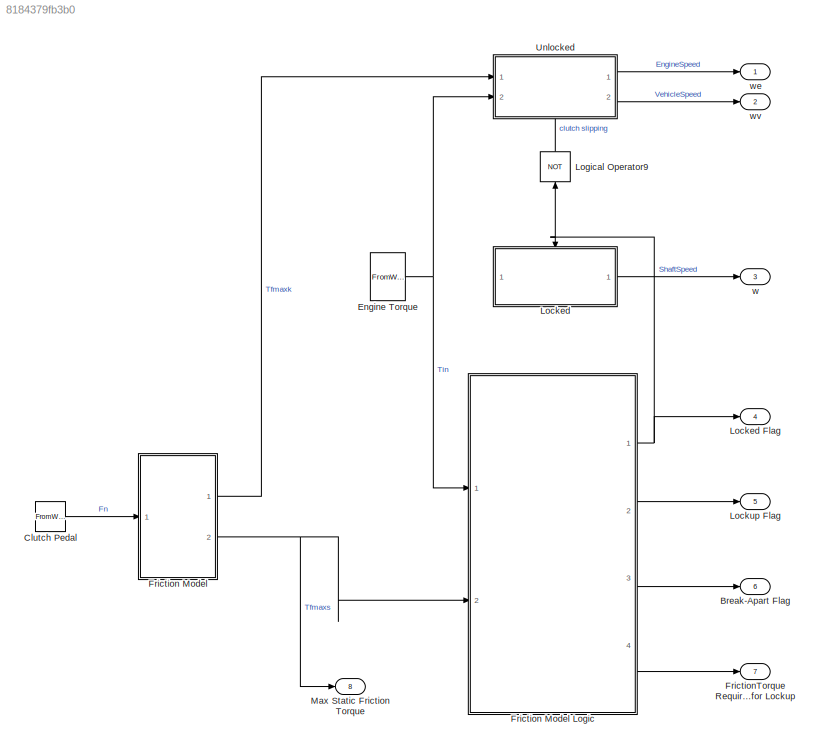
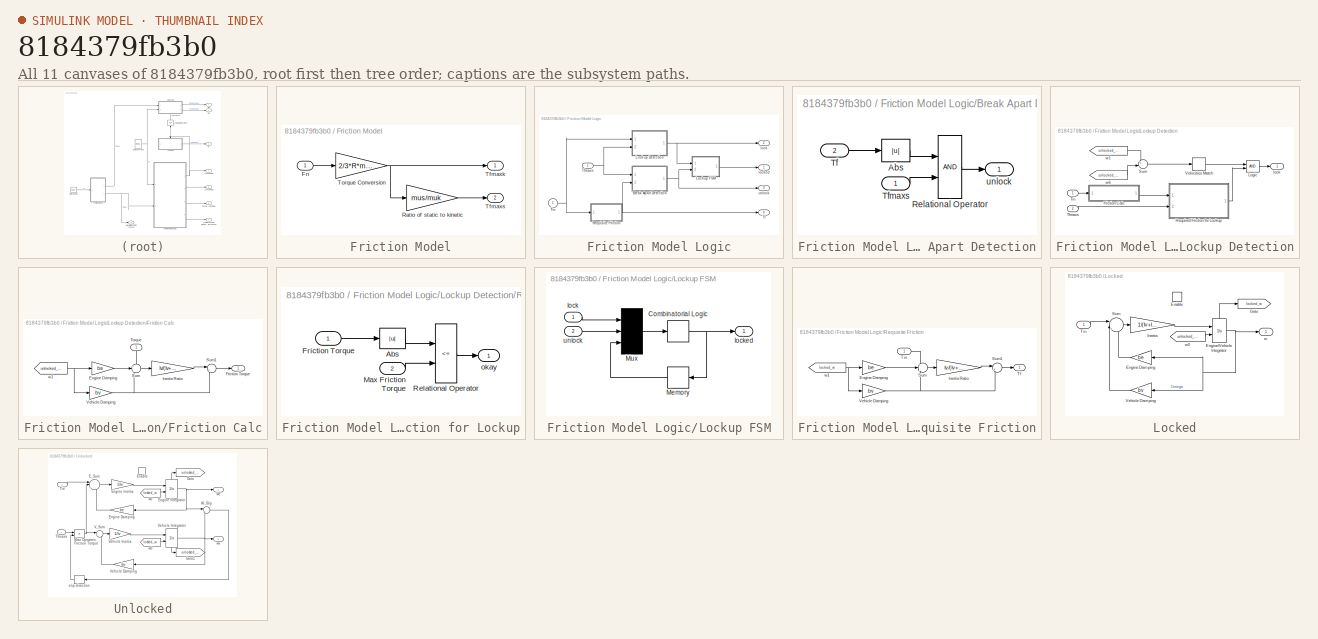
[diagram: thumbnail index - all 11 canvases of the model, root first then tree order]
MODEL slx_8184379fb3b0
KIND model
CONFIG AbsTol = auto
CONFIG EnableMultiTasking = off
CONFIG FixedStep = auto
CONFIG MaxStep = auto
CONFIG MinStep = auto
CONFIG RelTol = 1e-3
CONFIG SampleTimeConstraint = Unconstrained
CONFIG SolverName = VariableStepAuto
CONFIG StartTime = 0.0
CONFIG StopTime = 10.0
WORKSPACE source: mxarray member
WORKSPACE Fn = [0 1 2 3 4 5 6 7 8 9 10 0 ... (22 elements, 11x2)]
WORKSPACE Ie = 1
WORKSPACE Iv = 5
WORKSPACE R = 1
WORKSPACE Tin = [1 2 3 4 5 6 7 8 9 10 2 2 ... (20 elements, 10x2)]
WORKSPACE be = 2
WORKSPACE bv = 1
WORKSPACE f1 = [1 6 11 16 21 26 31 36 41 46 51]
WORKSPACE muk = 1
WORKSPACE mus = 1.5
BLOCK [Outport] Break-Apart Flag
  InitialOutput = 0
  Port = 6
  VectorParamsAs1DForOutWhenUnconnected = off
BLOCK [FromWorkspace] Clutch Pedal
  VariableName = Fn
  ZeroCross = off
BLOCK [FromWorkspace] Engine Torque
  VariableName = Tin
  ZeroCross = off
BLOCK [SubSystem] Friction Model
  Ports = [1, 2]
  RequestExecContextInheritance = off
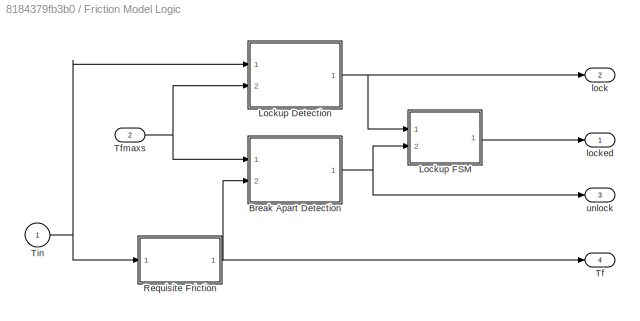
BLOCK [SubSystem] Friction Model Logic
  Ports = [2, 4]
  RequestExecContextInheritance = off
BLOCK [SubSystem] Friction Model Logic/Break Apart Detection
  Ports = [2, 1]
  RequestExecContextInheritance = off
BLOCK [Abs] Friction Model Logic/Break Apart Detection/Abs
BLOCK [RelationalOperator] Friction Model Logic/Break Apart Detection/Relational Operator
  OutDataTypeStr = boolean
  Ports = [2, 1]
BLOCK [Inport] Friction Model Logic/Break Apart Detection/Tf
  Port = 2
BLOCK [Inport] Friction Model Logic/Break Apart Detection/Tfmaxs
BLOCK [Outport] Friction Model Logic/Break Apart Detection/unlock
  InitialOutput = 0
  VectorParamsAs1DForOutWhenUnconnected = off
BLOCK [SubSystem] Friction Model Logic/Lockup Detection
  Ports = [2, 1]
  RequestExecContextInheritance = off
BLOCK [SubSystem] Friction Model Logic/Lockup Detection/Friction Calc
  Ports = [1, 1]
  RequestExecContextInheritance = off
BLOCK [Gain] Friction Model Logic/Lockup Detection/Friction Calc/Engine Damping
  Gain = be
  NameLocation = top
  OutDataTypeStr = Inherit: Same as input
  ParamDataTypeStr = Inherit: Same as input
  SaturateOnIntegerOverflow = on
BLOCK [Outport] Friction Model Logic/Lockup Detection/Friction Calc/Friction Torque
  InitialOutput = 0
  VectorParamsAs1DForOutWhenUnconnected = off
BLOCK [Gain] Friction Model Logic/Lockup Detection/Friction Calc/Inertia Ratio
  Gain = Iv/(Iv+Ie)
  OutDataTypeStr = Inherit: Same as input
  ParamDataTypeStr = Inherit: Same as input
  SaturateOnIntegerOverflow = on
BLOCK [Sum] Friction Model Logic/Lockup Detection/Friction Calc/Sum
  InputSameDT = on
  Inputs = +--
  OutDataTypeStr = Inherit: Same as first input
  Ports = [3, 1]
  SaturateOnIntegerOverflow = on
BLOCK [Sum] Friction Model Logic/Lockup Detection/Friction Calc/Sum1
  InputSameDT = on
  Inputs = |++
  OutDataTypeStr = Inherit: Same as first input
  Ports = [2, 1]
  SaturateOnIntegerOverflow = on
BLOCK [Inport] Friction Model Logic/Lockup Detection/Friction Calc/Torque
  NameLocation = left
BLOCK [Gain] Friction Model Logic/Lockup Detection/Friction Calc/Vehicle Damping
  Gain = bv
  OutDataTypeStr = Inherit: Same as input
  ParamDataTypeStr = Inherit: Same as input
  SaturateOnIntegerOverflow = on
BLOCK [From] Friction Model Logic/Lockup Detection/Friction Calc/w1
  GotoTag = unlocked_we
  TagVisibility = global
BLOCK [Logic] Friction Model Logic/Lockup Detection/Logic
  AttributesFormatString = (%<Operator>)
  IconShape = distinctive
  OutDataTypeStr = boolean
  Ports = [2, 1]
BLOCK [SubSystem] Friction Model Logic/Lockup Detection/Required Friction for Lockup
  Ports = [2, 1]
  RequestExecContextInheritance = off
BLOCK [Abs] Friction Model Logic/Lockup Detection/Required Friction for Lockup/Abs
BLOCK [Inport] Friction Model Logic/Lockup Detection/Required Friction for Lockup/Friction Torque
BLOCK [Inport] Friction Model Logic/Lockup Detection/Required Friction for Lockup/Max Friction Torque
  Port = 2
BLOCK [RelationalOperator] Friction Model Logic/Lockup Detection/Required Friction for Lockup/Relational Operator
  Operator = <=
  OutDataTypeStr = boolean
  Ports = [2, 1]
BLOCK [Outport] Friction Model Logic/Lockup Detection/Required Friction for Lockup/okay
  InitialOutput = 0
  VectorParamsAs1DForOutWhenUnconnected = off
BLOCK [Sum] Friction Model Logic/Lockup Detection/Sum
  InputSameDT = on
  Inputs = +-
  OutDataTypeStr = Inherit: Same as first input
  Ports = [2, 1]
  SaturateOnIntegerOverflow = on
BLOCK [Inport] Friction Model Logic/Lockup Detection/Tfmaxs
  Port = 2
BLOCK [Inport] Friction Model Logic/Lockup Detection/Tin
BLOCK [HitCross] Friction Model Logic/Lockup Detection/Velocities Match
  Ports = [1, 1]
BLOCK [Outport] Friction Model Logic/Lockup Detection/lock
  InitialOutput = 0
  VectorParamsAs1DForOutWhenUnconnected = off
BLOCK [From] Friction Model Logic/Lockup Detection/w1
  GotoTag = unlocked_we
  TagVisibility = global
BLOCK [From] Friction Model Logic/Lockup Detection/w6
  GotoTag = unlocked_wv
  TagVisibility = global
BLOCK [SubSystem] Friction Model Logic/Lockup FSM
  Ports = [2, 1]
  RequestExecContextInheritance = off
BLOCK [CombinatorialLogic] Friction Model Logic/Lockup FSM/Combinatorial Logic
  TruthTable = [0;1;0;0;1;1;1;0]
BLOCK [Memory] Friction Model Logic/Lockup FSM/Memory
BLOCK [Mux] Friction Model Logic/Lockup FSM/Mux
  Inputs = 3
  Ports = [3, 1]
BLOCK [Inport] Friction Model Logic/Lockup FSM/lock
  NameLocation = top
BLOCK [Outport] Friction Model Logic/Lockup FSM/locked
  InitialOutput = 0
  VectorParamsAs1DForOutWhenUnconnected = off
BLOCK [Inport] Friction Model Logic/Lockup FSM/unlock
  Port = 2
BLOCK [SubSystem] Friction Model Logic/Requisite Friction
  Ports = [1, 1]
  RequestExecContextInheritance = off
BLOCK [Gain] Friction Model Logic/Requisite Friction/Engine Damping
  Gain = be
  NameLocation = top
  OutDataTypeStr = Inherit: Same as input
  ParamDataTypeStr = Inherit: Same as input
  SaturateOnIntegerOverflow = on
BLOCK [Gain] Friction Model Logic/Requisite Friction/Inertia Ratio
  Gain = Iv/(Iv+Ie)
  OutDataTypeStr = Inherit: Same as input
  ParamDataTypeStr = Inherit: Same as input
  SaturateOnIntegerOverflow = on
BLOCK [Sum] Friction Model Logic/Requisite Friction/Sum
  InputSameDT = on
  Inputs = +--
  OutDataTypeStr = Inherit: Same as first input
  Ports = [3, 1]
  SaturateOnIntegerOverflow = on
BLOCK [Sum] Friction Model Logic/Requisite Friction/Sum1
  InputSameDT = on
  Inputs = |++
  OutDataTypeStr = Inherit: Same as first input
  Ports = [2, 1]
  SaturateOnIntegerOverflow = on
BLOCK [Outport] Friction Model Logic/Requisite Friction/Tf
  InitialOutput = 0
  VectorParamsAs1DForOutWhenUnconnected = off
BLOCK [Inport] Friction Model Logic/Requisite Friction/Tin
BLOCK [Gain] Friction Model Logic/Requisite Friction/Vehicle Damping
  Gain = bv
  OutDataTypeStr = Inherit: Same as input
  ParamDataTypeStr = Inherit: Same as input
  SaturateOnIntegerOverflow = on
BLOCK [From] Friction Model Logic/Requisite Friction/w1
  GotoTag = locked_w
  NameLocation = top
  TagVisibility = global
BLOCK [Outport] Friction Model Logic/Tf
  InitialOutput = 0
  Port = 4
  VectorParamsAs1DForOutWhenUnconnected = off
BLOCK [Inport] Friction Model Logic/Tfmaxs
  Port = 2
BLOCK [Inport] Friction Model Logic/Tin
BLOCK [Outport] Friction Model Logic/lock
  InitialOutput = 0
  Port = 2
  VectorParamsAs1DForOutWhenUnconnected = off
BLOCK [Outport] Friction Model Logic/locked
  InitialOutput = 0
  VectorParamsAs1DForOutWhenUnconnected = off
BLOCK [Outport] Friction Model Logic/unlock
  InitialOutput = 0
  Port = 3
  VectorParamsAs1DForOutWhenUnconnected = off
BLOCK [Inport] Friction Model/Fn
BLOCK [Gain] Friction Model/Ratio of static to kinetic
  Gain = mus/muk
  OutDataTypeStr = Inherit: Same as input
  ParamDataTypeStr = Inherit: Same as input
  SaturateOnIntegerOverflow = on
BLOCK [Outport] Friction Model/Tfmaxk
  InitialOutput = 0
  VectorParamsAs1DForOutWhenUnconnected = off
BLOCK [Outport] Friction Model/Tfmaxs
  InitialOutput = 0
  Port = 2
  VectorParamsAs1DForOutWhenUnconnected = off
BLOCK [Gain] Friction Model/Torque Conversion
  Gain = 2/3*R*muk
  OutDataTypeStr = Inherit: Same as input
  ParamDataTypeStr = Inherit: Same as input
  SaturateOnIntegerOverflow = on
BLOCK [Outport] FrictionTorque Required for Lockup
  InitialOutput = 0
  Port = 7
  VectorParamsAs1DForOutWhenUnconnected = off
BLOCK [SubSystem] Locked
  Ports = [1, 1, 1]
  RequestExecContextInheritance = off
  TreatAsAtomicUnit = on
BLOCK [Outport] Locked Flag
  InitialOutput = 0
  Port = 4
  VectorParamsAs1DForOutWhenUnconnected = off
BLOCK [EnablePort] Locked/Enable
  Ports = []
  StatesWhenEnabling = reset
BLOCK [Gain] Locked/Engine Damping
  Gain = be
  OutDataTypeStr = Inherit: Same as input
  ParamDataTypeStr = Inherit: Same as input
  SaturateOnIntegerOverflow = on
BLOCK [Integrator] Locked/Engine//Vehicle Integrator
  InitialConditionSource = external
  Ports = [2, 1, 0, 0, 1]
  ShowStatePort = on
BLOCK [Goto] Locked/Goto
  GotoTag = locked_w
  NameLocation = top
  TagVisibility = global
BLOCK [Gain] Locked/Inertia
  Gain = 1/(Iv+Ie)
  OutDataTypeStr = Inherit: Same as input
  ParamDataTypeStr = Inherit: Same as input
  SaturateOnIntegerOverflow = on
BLOCK [Sum] Locked/Sum
  InputSameDT = on
  Inputs = ||+--
  OutDataTypeStr = Inherit: Same as first input
  Ports = [3, 1]
  SaturateOnIntegerOverflow = on
BLOCK [Inport] Locked/Tin
BLOCK [Gain] Locked/Vehicle Damping
  Gain = bv
  OutDataTypeStr = Inherit: Same as input
  ParamDataTypeStr = Inherit: Same as input
  SaturateOnIntegerOverflow = on
BLOCK [Outport] Locked/w
  InitialOutput = 0
  VectorParamsAs1DForOutWhenUnconnected = off
BLOCK [From] Locked/w0
  GotoTag = unlocked_we
  TagVisibility = global
BLOCK [Outport] Lockup Flag
  InitialOutput = 0
  Port = 5
  VectorParamsAs1DForOutWhenUnconnected = off
BLOCK [Logic] Logical Operator9
  IconShape = distinctive
  Inputs = 1
  NameLocation = left
  Operator = NOT
  OutDataTypeStr = boolean
  Ports = [1, 1]
BLOCK [Outport] Max Static Friction Torque
  InitialOutput = 0
  Port = 8
  VectorParamsAs1DForOutWhenUnconnected = off
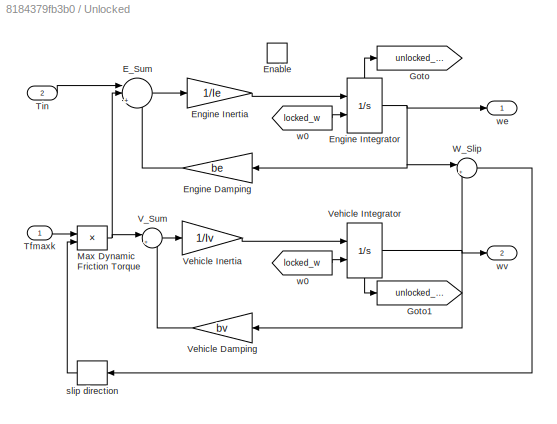
BLOCK [SubSystem] Unlocked
  NameLocation = top
  Ports = [2, 2, 1]
  RequestExecContextInheritance = off
  TreatAsAtomicUnit = on
BLOCK [Sum] Unlocked/E_Sum
  InputSameDT = on
  Inputs = ||+--
  NameLocation = top
  OutDataTypeStr = Inherit: Same as first input
  Ports = [3, 1]
  SaturateOnIntegerOverflow = on
BLOCK [EnablePort] Unlocked/Enable
  Ports = []
  StatesWhenEnabling = reset
BLOCK [Gain] Unlocked/Engine Damping
  Gain = be
  OutDataTypeStr = Inherit: Same as input
  ParamDataTypeStr = Inherit: Same as input
  SaturateOnIntegerOverflow = on
BLOCK [Gain] Unlocked/Engine Inertia
  Gain = 1/Ie
  OutDataTypeStr = Inherit: Same as input
  ParamDataTypeStr = Inherit: Same as input
  SaturateOnIntegerOverflow = on
BLOCK [Integrator] Unlocked/Engine Integrator
  InitialConditionSource = external
  Ports = [2, 1, 0, 0, 1]
  ShowStatePort = on
BLOCK [Goto] Unlocked/Goto
  GotoTag = unlocked_we
  TagVisibility = global
BLOCK [Goto] Unlocked/Goto1
  GotoTag = unlocked_wv
  TagVisibility = global
BLOCK [Product] Unlocked/Max Dynamic Friction Torque
  InputSameDT = on
  OutDataTypeStr = Inherit: Same as first input
  Ports = [2, 1]
  RndMeth = Zero
  SaturateOnIntegerOverflow = on
BLOCK [Inport] Unlocked/Tfmaxk
BLOCK [Inport] Unlocked/Tin
  Port = 2
BLOCK [Sum] Unlocked/V_Sum
  InputSameDT = on
  Inputs = |+-
  NameLocation = top
  OutDataTypeStr = Inherit: Same as first input
  Ports = [2, 1]
  SaturateOnIntegerOverflow = on
BLOCK [Gain] Unlocked/Vehicle Damping
  Gain = bv
  OutDataTypeStr = Inherit: Same as input
  ParamDataTypeStr = Inherit: Same as input
  SaturateOnIntegerOverflow = on
BLOCK [Gain] Unlocked/Vehicle Inertia
  Gain = 1/Iv
  OutDataTypeStr = Inherit: Same as input
  ParamDataTypeStr = Inherit: Same as input
  SaturateOnIntegerOverflow = on
BLOCK [Integrator] Unlocked/Vehicle Integrator
  InitialConditionSource = external
  NameLocation = top
  Ports = [2, 1, 0, 0, 1]
  ShowStatePort = on
BLOCK [Sum] Unlocked/W_Slip
  InputSameDT = on
  Inputs = |+-
  NameLocation = top
  OutDataTypeStr = Inherit: Same as first input
  Ports = [2, 1]
  SaturateOnIntegerOverflow = on
BLOCK [Signum] Unlocked/slip direction
BLOCK [From] Unlocked/w0
  GotoTag = locked_w
  TagVisibility = global
BLOCK [From] Unlocked/w0 
  GotoTag = locked_w
  TagVisibility = global
BLOCK [Outport] Unlocked/we
  InitialOutput = 0
  VectorParamsAs1DForOutWhenUnconnected = off
BLOCK [Outport] Unlocked/wv
  InitialOutput = 0
  Port = 2
  VectorParamsAs1DForOutWhenUnconnected = off
BLOCK [Outport] w
  InitialOutput = 0
  Port = 3
  VectorParamsAs1DForOutWhenUnconnected = off
BLOCK [Outport] we
  InitialOutput = 0
  VectorParamsAs1DForOutWhenUnconnected = off
BLOCK [Outport] wv
  InitialOutput = 0
  Port = 2
  VectorParamsAs1DForOutWhenUnconnected = off
LINE Clutch Pedal:1 -> Friction Model:1
NET Engine Torque:1 -> Friction Model Logic:1, Unlocked:2
LINE Friction Model Logic/Break Apart Detection/Abs:1 -> Friction Model Logic/Break Apart Detection/Relational Operator:1
LINE Friction Model Logic/Break Apart Detection/Relational Operator:1 -> Friction Model Logic/Break Apart Detection/unlock:1
LINE Friction Model Logic/Break Apart Detection/Tf:1 -> Friction Model Logic/Break Apart Detection/Abs:1
LINE Friction Model Logic/Break Apart Detection/Tfmaxs:1 -> Friction Model Logic/Break Apart Detection/Relational Operator:2
NET Friction Model Logic/Break Apart Detection:1 -> Friction Model Logic/Lockup FSM:2, Friction Model Logic/unlock:1
LINE Friction Model Logic/Lockup Detection/Friction Calc/Engine Damping:1 -> Friction Model Logic/Lockup Detection/Friction Calc/Sum:2
LINE Friction Model Logic/Lockup Detection/Friction Calc/Inertia Ratio:1 -> Friction Model Logic/Lockup Detection/Friction Calc/Sum1:1
LINE Friction Model Logic/Lockup Detection/Friction Calc/Sum1:1 -> Friction Model Logic/Lockup Detection/Friction Calc/Friction Torque:1
LINE Friction Model Logic/Lockup Detection/Friction Calc/Sum:1 -> Friction Model Logic/Lockup Detection/Friction Calc/Inertia Ratio:1
LINE Friction Model Logic/Lockup Detection/Friction Calc/Torque:1 -> Friction Model Logic/Lockup Detection/Friction Calc/Sum:1
NET Friction Model Logic/Lockup Detection/Friction Calc/Vehicle Damping:1 -> Friction Model Logic/Lockup Detection/Friction Calc/Sum1:2, Friction Model Logic/Lockup Detection/Friction Calc/Sum:3
NET Friction Model Logic/Lockup Detection/Friction Calc/w1:1 -> Friction Model Logic/Lockup Detection/Friction Calc/Engine Damping:1, Friction Model Logic/Lockup Detection/Friction Calc/Vehicle Damping:1
LINE Friction Model Logic/Lockup Detection/Friction Calc:1 -> Friction Model Logic/Lockup Detection/Required Friction for Lockup:1
LINE Friction Model Logic/Lockup Detection/Logic:1 -> Friction Model Logic/Lockup Detection/lock:1
LINE Friction Model Logic/Lockup Detection/Required Friction for Lockup/Abs:1 -> Friction Model Logic/Lockup Detection/Required Friction for Lockup/Relational Operator:1
LINE Friction Model Logic/Lockup Detection/Required Friction for Lockup/Friction Torque:1 -> Friction Model Logic/Lockup Detection/Required Friction for Lockup/Abs:1
LINE Friction Model Logic/Lockup Detection/Required Friction for Lockup/Max Friction Torque:1 -> Friction Model Logic/Lockup Detection/Required Friction for Lockup/Relational Operator:2
LINE Friction Model Logic/Lockup Detection/Required Friction for Lockup/Relational Operator:1 -> Friction Model Logic/Lockup Detection/Required Friction for Lockup/okay:1
LINE Friction Model Logic/Lockup Detection/Required Friction for Lockup:1 -> Friction Model Logic/Lockup Detection/Logic:2
LINE Friction Model Logic/Lockup Detection/Sum:1 -> Friction Model Logic/Lockup Detection/Velocities Match:1
LINE Friction Model Logic/Lockup Detection/Tfmaxs:1 -> Friction Model Logic/Lockup Detection/Required Friction for Lockup:2
LINE Friction Model Logic/Lockup Detection/Tin:1 -> Friction Model Logic/Lockup Detection/Friction Calc:1
LINE Friction Model Logic/Lockup Detection/Velocities Match:1 -> Friction Model Logic/Lockup Detection/Logic:1
LINE Friction Model Logic/Lockup Detection/w1:1 -> Friction Model Logic/Lockup Detection/Sum:1
LINE Friction Model Logic/Lockup Detection/w6:1 -> Friction Model Logic/Lockup Detection/Sum:2
NET Friction Model Logic/Lockup Detection:1 -> Friction Model Logic/Lockup FSM:1, Friction Model Logic/lock:1
NET Friction Model Logic/Lockup FSM/Combinatorial Logic:1 -> Friction Model Logic/Lockup FSM/Memory:1, Friction Model Logic/Lockup FSM/locked:1
LINE Friction Model Logic/Lockup FSM/Memory:1 -> Friction Model Logic/Lockup FSM/Mux:3
LINE Friction Model Logic/Lockup FSM/Mux:1 -> Friction Model Logic/Lockup FSM/Combinatorial Logic:1
LINE Friction Model Logic/Lockup FSM/lock:1 -> Friction Model Logic/Lockup FSM/Mux:1
LINE Friction Model Logic/Lockup FSM/unlock:1 -> Friction Model Logic/Lockup FSM/Mux:2
LINE Friction Model Logic/Lockup FSM:1 -> Friction Model Logic/locked:1
LINE Friction Model Logic/Requisite Friction/Engine Damping:1 -> Friction Model Logic/Requisite Friction/Sum:2
LINE Friction Model Logic/Requisite Friction/Inertia Ratio:1 -> Friction Model Logic/Requisite Friction/Sum1:1
LINE Friction Model Logic/Requisite Friction/Sum1:1 -> Friction Model Logic/Requisite Friction/Tf:1
LINE Friction Model Logic/Requisite Friction/Sum:1 -> Friction Model Logic/Requisite Friction/Inertia Ratio:1
LINE Friction Model Logic/Requisite Friction/Tin:1 -> Friction Model Logic/Requisite Friction/Sum:1
NET Friction Model Logic/Requisite Friction/Vehicle Damping:1 -> Friction Model Logic/Requisite Friction/Sum1:2, Friction Model Logic/Requisite Friction/Sum:3
NET Friction Model Logic/Requisite Friction/w1:1 -> Friction Model Logic/Requisite Friction/Engine Damping:1, Friction Model Logic/Requisite Friction/Vehicle Damping:1
NET Friction Model Logic/Requisite Friction:1 -> Friction Model Logic/Break Apart Detection:2, Friction Model Logic/Tf:1
NET Friction Model Logic/Tfmaxs:1 -> Friction Model Logic/Break Apart Detection:1, Friction Model Logic/Lockup Detection:2
NET Friction Model Logic/Tin:1 -> Friction Model Logic/Lockup Detection:1, Friction Model Logic/Requisite Friction:1
NET Friction Model Logic:1 -> Locked Flag:1, Locked:enable, Logical Operator9:1
LINE Friction Model Logic:2 -> Lockup Flag:1
LINE Friction Model Logic:3 -> Break-Apart Flag:1
LINE Friction Model Logic:4 -> FrictionTorque Required for Lockup:1
LINE Friction Model/Fn:1 -> Friction Model/Torque Conversion:1
LINE Friction Model/Ratio of static to kinetic:1 -> Friction Model/Tfmaxs:1
NET Friction Model/Torque Conversion:1 -> Friction Model/Ratio of static to kinetic:1, Friction Model/Tfmaxk:1
LINE Friction Model:1 -> Unlocked:1
NET Friction Model:2 -> Friction Model Logic:2, Max Static Friction Torque:1
LINE Locked/Engine Damping:1 -> Locked/Sum:3
NET Locked/Engine//Vehicle Integrator:1 -> Locked/Engine Damping:1, Locked/Vehicle Damping:1, Locked/w:1
LINE Locked/Engine//Vehicle Integrator:state -> Locked/Goto:1
LINE Locked/Inertia:1 -> Locked/Engine//Vehicle Integrator:1
LINE Locked/Sum:1 -> Locked/Inertia:1
LINE Locked/Tin:1 -> Locked/Sum:1
LINE Locked/Vehicle Damping:1 -> Locked/Sum:2
LINE Locked/w0:1 -> Locked/Engine//Vehicle Integrator:2
LINE Locked:1 -> w:1
LINE Logical Operator9:1 -> Unlocked:enable
LINE Unlocked/E_Sum:1 -> Unlocked/Engine Inertia:1
LINE Unlocked/Engine Damping:1 -> Unlocked/E_Sum:3
LINE Unlocked/Engine Inertia:1 -> Unlocked/Engine Integrator:1
NET Unlocked/Engine Integrator:1 -> Unlocked/Engine Damping:1, Unlocked/W_Slip:1, Unlocked/we:1
LINE Unlocked/Engine Integrator:state -> Unlocked/Goto:1
NET Unlocked/Max Dynamic Friction Torque:1 -> Unlocked/E_Sum:2, Unlocked/V_Sum:1
LINE Unlocked/Tfmaxk:1 -> Unlocked/Max Dynamic Friction Torque:1
LINE Unlocked/Tin:1 -> Unlocked/E_Sum:1
LINE Unlocked/V_Sum:1 -> Unlocked/Vehicle Inertia:1
LINE Unlocked/Vehicle Damping:1 -> Unlocked/V_Sum:2
LINE Unlocked/Vehicle Inertia:1 -> Unlocked/Vehicle Integrator:1
NET Unlocked/Vehicle Integrator:1 -> Unlocked/Vehicle Damping:1, Unlocked/W_Slip:2, Unlocked/wv:1
LINE Unlocked/Vehicle Integrator:state -> Unlocked/Goto1:1
LINE Unlocked/W_Slip:1 -> Unlocked/slip direction:1
LINE Unlocked/slip direction:1 -> Unlocked/Max Dynamic Friction Torque:2
LINE Unlocked/w0 :1 -> Unlocked/Engine Integrator:2
LINE Unlocked/w0:1 -> Unlocked/Vehicle Integrator:2
LINE Unlocked:1 -> we:1
LINE Unlocked:2 -> wv:1
note: NET lines group one-source signal fan-out (src -> all destinations, sorted); 1:1 wires keep LINE
